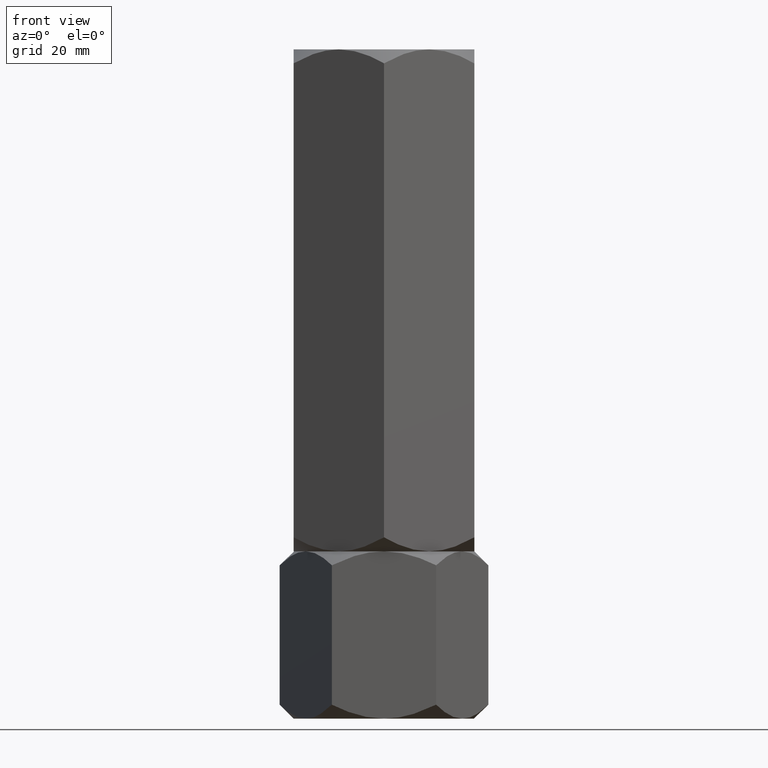
[diagram: clean part render]
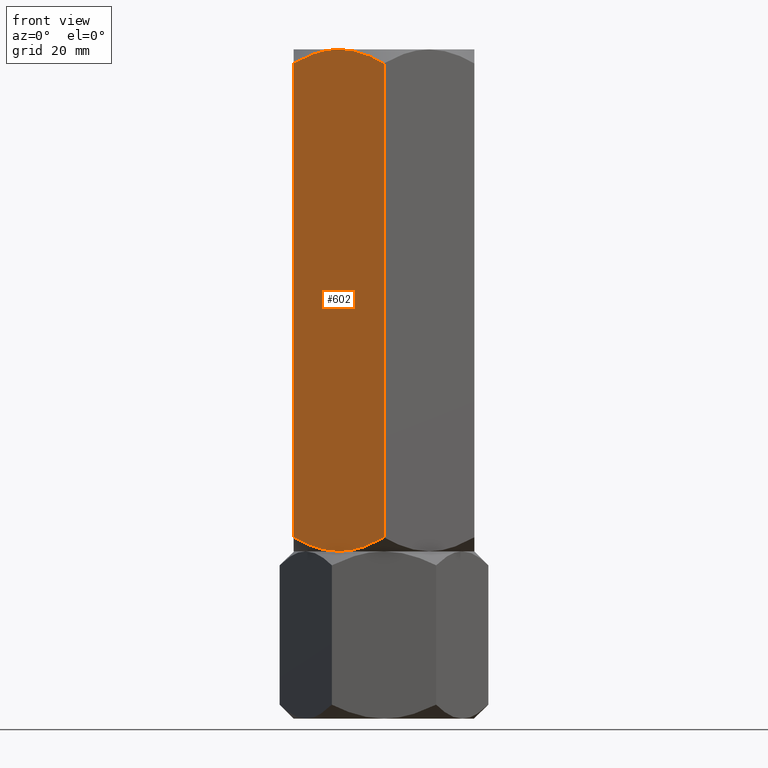
[diagram: same view with one face highlighted and labeled with its STEP entity id]
A machine part, front view. The second image highlights one B-rep face of the part: STEP entity #602.
In plain terms, the highlighted planar face has unit normal (0.5, 0.866, -0).
Its self-contained STEP definition (entity closure, byte-faithful):
#4 = B_SPLINE_CURVE_WITH_KNOTS ( 'NONE', 3,
 ( #1480, #1626, #1804, #1016, #1657, #1459, #482, #1912, #1763, #333 ),
 .UNSPECIFIED., .F., .F.,
 ( 4, 2, 2, 2, 4 ),
 ( 2.544307986818388831E-07, 0.005386537354063075135, 0.008079678815695271604, 0.009426249546511370273, 0.01077282027732747241 ),
 .UNSPECIFIED. ) ;
#24 = CARTESIAN_POINT ( 'NONE',  ( -18.00000000000000355, -10.39230484541325872, 36.11794302415981406 ) ) ;
#67 = B_SPLINE_CURVE_WITH_KNOTS ( 'NONE', 3,
 ( #362, #1368, #1374, #562, #1210, #1995, #1012, #1959, #532, #1177 ),
 .UNSPECIFIED., .F., .F.,
 ( 4, 2, 2, 2, 4 ),
 ( 2.544307986816325776E-07, 0.005386537354063064727, 0.008079678815695268135, 0.009426249546511372007, 0.01077282027732747414 ),
 .UNSPECIFIED. ) ;
#75 = CARTESIAN_POINT ( 'NONE',  ( -3.379014044959083873E-15, -20.78460969082652809, 36.11794302415981406 ) ) ;
#162 = VERTEX_POINT ( 'NONE', #445 ) ;
#182 = ORIENTED_EDGE ( 'NONE', *, *, #1741, .F. ) ;
#283 = EDGE_LOOP ( 'NONE', ( #504, #1648, #1682, #832, #1496, #182 ) ) ;
#333 = CARTESIAN_POINT ( 'NONE',  ( -9.000000000000005329, -15.58845726811989429, 33.33333333333330017 ) ) ;
#362 = CARTESIAN_POINT ( 'NONE',  ( -18.00000000000000711, -10.39230484541325694, 130.5487236425067863 ) ) ;
#389 = CARTESIAN_POINT ( 'NONE',  ( -15.13928418966203893, -12.04393988858690001, 34.60590803483753319 ) ) ;
#400 = LINE ( 'NONE', #1494, #639 ) ;
#403 = DIRECTION ( 'NONE',  ( 0.5000000000000003331, 0.8660254037844385966, -0.000000000000000000 ) ) ;
#419 = CARTESIAN_POINT ( 'NONE',  ( -6.297340013485389316E-15, -20.78460969082653165, 130.5487236425067863 ) ) ;
#445 = CARTESIAN_POINT ( 'NONE',  ( -9.000000000000003553, -15.58845726811989074, 133.3333333333333144 ) ) ;
#482 = CARTESIAN_POINT ( 'NONE',  ( -7.415748492146458481, -16.50312530264320188, 33.42028022345144933 ) ) ;
#504 = ORIENTED_EDGE ( 'NONE', *, *, #1658, .F. ) ;
#532 = CARTESIAN_POINT ( 'NONE',  ( -9.394125676616237541, -15.36090870263096519, 133.3333333333333428 ) ) ;
#562 = CARTESIAN_POINT ( 'NONE',  ( -12.90267270303528058, -13.33524813246346774, 132.7962477775043055 ) ) ;
#566 = CARTESIAN_POINT ( 'NONE',  ( -18.00000000000000355, -10.39230484541325872, 133.3333333333333144 ) ) ;
#571 = EDGE_CURVE ( 'NONE', #1641, #1279, #4, .T. ) ;
#596 = CARTESIAN_POINT ( 'NONE',  ( -1.409696000463992682, -19.97072132548310108, 131.3626120078502595 ) ) ;
#602 = ADVANCED_FACE ( 'NONE', ( #1048 ), #1963, .F. ) ;
#622 = CARTESIAN_POINT ( 'NONE',  ( -9.000000000000003553, -15.58845726811989074, 133.3333333333333144 ) ) ;
#639 = VECTOR ( 'NONE', #1045, 1000.000000000000000 ) ;
#661 = B_SPLINE_CURVE_WITH_KNOTS ( 'NONE', 3,
 ( #622, #951, #1717, #788, #596, #419 ),
 .UNSPECIFIED., .F., .F.,
 ( 4, 2, 4 ),
 ( 0.01077282027732747414, 0.01612137750481874160, 0.02146993473231000732 ),
 .UNSPECIFIED. ) ;
#689 = EDGE_CURVE ( 'NONE', #1279, #1867, #1629, .T. ) ;
#710 = CARTESIAN_POINT ( 'NONE',  ( -9.000000000000005329, -15.58845726811989429, 33.33333333333330017 ) ) ;
#788 = CARTESIAN_POINT ( 'NONE',  ( -2.860715810337969955, -19.13297464765287614, 132.0607586318289748 ) ) ;
#832 = ORIENTED_EDGE ( 'NONE', *, *, #571, .F. ) ;
#839 = CARTESIAN_POINT ( 'NONE',  ( -2.998680872865238938E-15, -20.78460969082652809, 133.3333333333333144 ) ) ;
#951 = CARTESIAN_POINT ( 'NONE',  ( -7.434539168300463352, -16.49227650070743678, 133.3333333333332860 ) ) ;
#965 = EDGE_CURVE ( 'NONE', #1588, #1867, #400, .T. ) ;
#1012 = CARTESIAN_POINT ( 'NONE',  ( -10.58425150785354596, -14.67378923359657961, 133.2463864432151297 ) ) ;
#1016 = CARTESIAN_POINT ( 'NONE',  ( -5.097327296964722976, -17.84166640377631552, 33.87041888916230192 ) ) ;
#1045 = DIRECTION ( 'NONE',  ( -0.000000000000000000, -0.000000000000000000, -1.000000000000000000 ) ) ;
#1048 = FACE_OUTER_BOUND ( 'NONE', #283, .T. ) ;
#1156 = CARTESIAN_POINT ( 'NONE',  ( -9.000000000000005329, -15.58845726811989429, 33.33333333333330017 ) ) ;
#1177 = CARTESIAN_POINT ( 'NONE',  ( -9.000000000000003553, -15.58845726811989074, 133.3333333333333144 ) ) ;
#1210 = CARTESIAN_POINT ( 'NONE',  ( -12.14199022028321373, -13.77442836864821452, 132.9927702310780546 ) ) ;
#1231 = CARTESIAN_POINT ( 'NONE',  ( -6.297340013485389316E-15, -20.78460969082653165, 130.5487236425067863 ) ) ;
#1279 = VERTEX_POINT ( 'NONE', #1156 ) ;
#1296 = EDGE_CURVE ( 'NONE', #1415, #1641, #1328, .T. ) ;
#1315 = AXIS2_PLACEMENT_3D ( 'NONE', #566, #403, #1523 ) ;
#1328 = LINE ( 'NONE', #839, #1920 ) ;
#1368 = CARTESIAN_POINT ( 'NONE',  ( -16.58866960374795951, -11.20713682960487567, 131.3635556266983428 ) ) ;
#1374 = CARTESIAN_POINT ( 'NONE',  ( -15.14539811114619283, -12.04041001437221858, 132.0559502554434061 ) ) ;
#1415 = VERTEX_POINT ( 'NONE', #1231 ) ;
#1459 = CARTESIAN_POINT ( 'NONE',  ( -7.023280245922047804, -16.72971695024923733, 33.47205593243187138 ) ) ;
#1480 = CARTESIAN_POINT ( 'NONE',  ( -3.379014044959083873E-15, -20.78460969082652809, 36.11794302415981406 ) ) ;
#1494 = CARTESIAN_POINT ( 'NONE',  ( -18.00000000000000355, -10.39230484541325872, 133.3333333333333144 ) ) ;
#1496 = ORIENTED_EDGE ( 'NONE', *, *, #1296, .F. ) ;
#1523 = DIRECTION ( 'NONE',  ( -0.8660254037844384856, 0.5000000000000002220, 0.000000000000000000 ) ) ;
#1529 = CARTESIAN_POINT ( 'NONE',  ( -18.00000000000000711, -10.39230484541325694, 130.5487236425067863 ) ) ;
#1588 = VERTEX_POINT ( 'NONE', #1529 ) ;
#1626 = CARTESIAN_POINT ( 'NONE',  ( -1.411330396252050923, -19.96977770663490759, 35.30311103996819355 ) ) ;
#1629 = B_SPLINE_CURVE_WITH_KNOTS ( 'NONE', 3,
 ( #710, #1971, #1818, #389, #1677, #2031 ),
 .UNSPECIFIED., .F., .F.,
 ( 4, 2, 4 ),
 ( 0.01077282027732747241, 0.01612137750481873466, 0.02146993473231000038 ),
 .UNSPECIFIED. ) ;
#1641 = VERTEX_POINT ( 'NONE', #75 ) ;
#1648 = ORIENTED_EDGE ( 'NONE', *, *, #965, .T. ) ;
#1657 = CARTESIAN_POINT ( 'NONE',  ( -5.858009779716805809, -17.40248616759157585, 33.67389643558856704 ) ) ;
#1658 = EDGE_CURVE ( 'NONE', #1588, #162, #67, .T. ) ;
#1677 = CARTESIAN_POINT ( 'NONE',  ( -16.59030399953601886, -11.20619321075667862, 35.30405465881634797 ) ) ;
#1682 = ORIENTED_EDGE ( 'NONE', *, *, #689, .F. ) ;
#1717 = CARTESIAN_POINT ( 'NONE',  ( -5.895697476400527215, -17.38072716576608556, 133.0569374262117606 ) ) ;
#1741 = EDGE_CURVE ( 'NONE', #162, #1415, #661, .T. ) ;
#1763 = CARTESIAN_POINT ( 'NONE',  ( -8.605874323383776670, -15.81600583360881807, 33.33333333333330728 ) ) ;
#1804 = CARTESIAN_POINT ( 'NONE',  ( -2.854601888853814717, -19.13650452186756468, 34.61071641122316578 ) ) ;
#1818 = CARTESIAN_POINT ( 'NONE',  ( -12.10430252359948256, -13.79618737047369947, 33.60972924045488242 ) ) ;
#1867 = VERTEX_POINT ( 'NONE', #24 ) ;
#1912 = CARTESIAN_POINT ( 'NONE',  ( -8.209538469370132319, -16.04483044561309057, 33.35066618980736308 ) ) ;
#1920 = VECTOR ( 'NONE', #1940, 1000.000000000000000 ) ;
#1940 = DIRECTION ( 'NONE',  ( -0.000000000000000000, -0.000000000000000000, -1.000000000000000000 ) ) ;
#1959 = CARTESIAN_POINT ( 'NONE',  ( -9.790461530629876563, -15.13208409062668736, 133.3160004768592160 ) ) ;
#1963 = PLANE ( 'NONE',  #1315 ) ;
#1971 = CARTESIAN_POINT ( 'NONE',  ( -10.56546083169954642, -14.68463803553234293, 33.33333333333329307 ) ) ;
#1995 = CARTESIAN_POINT ( 'NONE',  ( -10.97671975407796019, -14.44719758599053172, 133.1946107342347148 ) ) ;
#2031 = CARTESIAN_POINT ( 'NONE',  ( -18.00000000000000355, -10.39230484541325872, 36.11794302415981406 ) ) ;